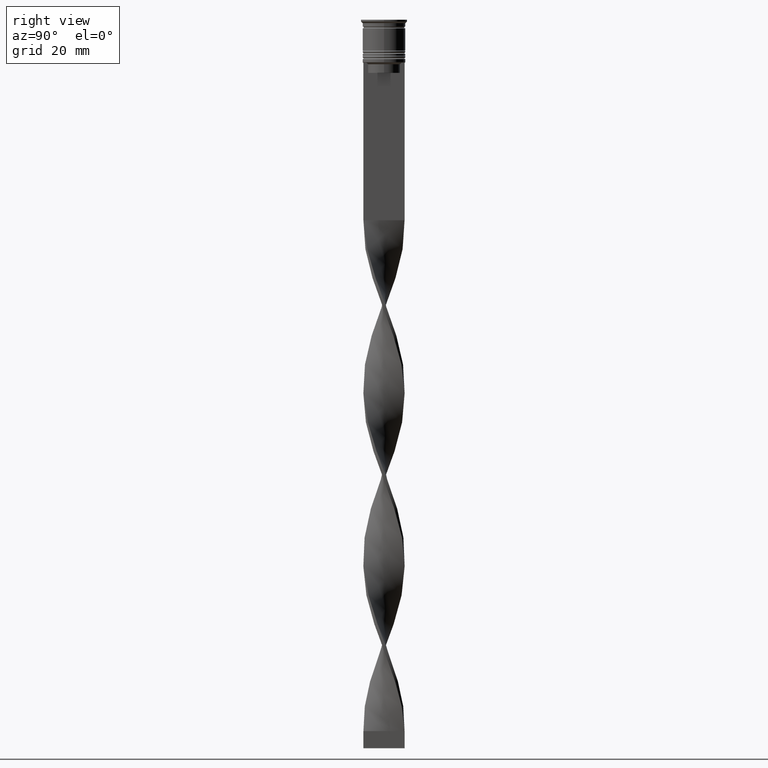
[diagram: clean part render]
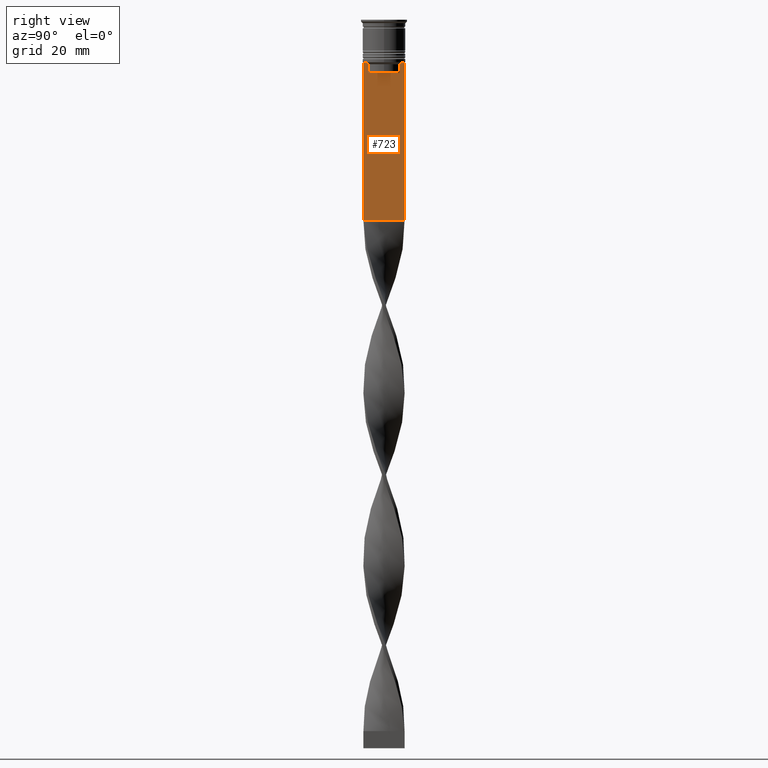
[diagram: same view with one face highlighted and labeled with its STEP entity id]
A machine part, right view. The second image highlights one B-rep face of the part: STEP entity #723.
In plain terms, the highlighted planar face has unit normal (-1, 0, 0).
Its self-contained STEP definition (entity closure, byte-faithful):
#14 = CARTESIAN_POINT ( 'NONE',  ( 0.5000000000000002220, 4.790630915080664742, -12.83338087185995491 ) ) ;
#32 = DIRECTION ( 'NONE',  ( -0.000000000000000000, -0.000000000000000000, 1.000000000000000000 ) ) ;
#78 = VERTEX_POINT ( 'NONE', #1930 ) ;
#184 = CARTESIAN_POINT ( 'NONE',  ( 0.5000000000000002220, 4.623040125285526436, 0.000000000000000000 ) ) ;
#185 = DIRECTION ( 'NONE',  ( 0.000000000000000000, 0.000000000000000000, 1.000000000000000000 ) ) ;
#203 = DIRECTION ( 'NONE',  ( 0.000000000000000000, -1.000000000000000000, 0.000000000000000000 ) ) ;
#280 = CARTESIAN_POINT ( 'NONE',  ( 0.5000000000000002220, 5.125670687822231564, -12.50000000000000000 ) ) ;
#304 = LINE ( 'NONE', #3254, #722 ) ;
#395 = VERTEX_POINT ( 'NONE', #678 ) ;
#484 = ORIENTED_EDGE ( 'NONE', *, *, #1216, .T. ) ;
#517 = CARTESIAN_POINT ( 'NONE',  ( 0.5000000000000002220, -4.623040125285526436, -13.00000000000000178 ) ) ;
#554 = EDGE_CURVE ( 'NONE', #965, #78, #1911, .T. ) ;
#597 = CARTESIAN_POINT ( 'NONE',  ( 0.5000000000000002220, -4.623040125285526436, -13.00000000000000178 ) ) ;
#678 = CARTESIAN_POINT ( 'NONE',  ( 0.5000000000000002220, 5.125670687822231564, -12.50000000000000000 ) ) ;
#722 = VECTOR ( 'NONE', #32, 1000.000000000000000 ) ;
#723 = ADVANCED_FACE ( 'NONE', ( #2562 ), #1402, .F. ) ;
#732 = CARTESIAN_POINT ( 'NONE',  ( 0.5000000000000002220, 4.623040125285526436, -15.50000000000000000 ) ) ;
#761 = CARTESIAN_POINT ( 'NONE',  ( 0.5000000000000002220, 6.000000000000000888, -0.4584054212077061097 ) ) ;
#777 = CARTESIAN_POINT ( 'NONE',  ( 0.5000000000000002220, -6.000000000000000000, -12.50000000000000000 ) ) ;
#804 = VERTEX_POINT ( 'NONE', #886 ) ;
#814 = ORIENTED_EDGE ( 'NONE', *, *, #3630, .T. ) ;
#839 = DIRECTION ( 'NONE',  ( 0.000000000000000000, 1.000000000000000000, 0.000000000000000000 ) ) ;
#868 = CARTESIAN_POINT ( 'NONE',  ( 0.5000000000000002220, -6.000000000000000000, -12.50000000000000000 ) ) ;
#886 = CARTESIAN_POINT ( 'NONE',  ( 0.5000000000000002220, -5.125670687822231564, -12.50000000000000000 ) ) ;
#965 = VERTEX_POINT ( 'NONE', #3401 ) ;
#1026 = LINE ( 'NONE', #3162, #2432 ) ;
#1032 = VECTOR ( 'NONE', #3611, 1000.000000000000000 ) ;
#1070 = DIRECTION ( 'NONE',  ( 0.000000000000000000, 0.000000000000000000, -1.000000000000000000 ) ) ;
#1174 = ORIENTED_EDGE ( 'NONE', *, *, #2844, .T. ) ;
#1216 = EDGE_CURVE ( 'NONE', #3163, #1746, #304, .T. ) ;
#1238 = CARTESIAN_POINT ( 'NONE',  ( 0.5000000000000002220, -4.790630799407577634, -12.83338098686238915 ) ) ;
#1255 = CARTESIAN_POINT ( 'NONE',  ( 0.5000000000000002220, -5.125670687822231564, -12.50000000000000000 ) ) ;
#1336 = ORIENTED_EDGE ( 'NONE', *, *, #3744, .T. ) ;
#1354 = VERTEX_POINT ( 'NONE', #868 ) ;
#1402 = PLANE ( 'NONE',  #2909 ) ;
#1425 = ORIENTED_EDGE ( 'NONE', *, *, #3059, .T. ) ;
#1463 = CARTESIAN_POINT ( 'NONE',  ( 0.5000000000000002220, 4.623040125285526436, -13.00000000000000178 ) ) ;
#1533 = ORIENTED_EDGE ( 'NONE', *, *, #554, .F. ) ;
#1746 = VERTEX_POINT ( 'NONE', #517 ) ;
#1895 = CARTESIAN_POINT ( 'NONE',  ( 0.5000000000000002220, -5.999999999999999112, -58.50000000000000000 ) ) ;
#1911 = LINE ( 'NONE', #761, #1032 ) ;
#1930 = CARTESIAN_POINT ( 'NONE',  ( 0.5000000000000002220, 6.000000000000000888, -58.50000000000000000 ) ) ;
#2000 = LINE ( 'NONE', #2579, #2558 ) ;
#2004 = CARTESIAN_POINT ( 'NONE',  ( 0.5000000000000002220, -6.000000000000000000, -58.50000000000000000 ) ) ;
#2015 = EDGE_LOOP ( 'NONE', ( #2457, #1336, #3446, #2941, #484, #1174, #814, #2614, #1425, #1533 ) ) ;
#2274 = B_SPLINE_CURVE_WITH_KNOTS ( 'NONE', 3,
 ( #597, #1238, #3278, #1255 ),
 .UNSPECIFIED., .F., .F.,
 ( 4, 4 ),
 ( 0.02203698174624554168, 0.02275222543365897770 ),
 .UNSPECIFIED. ) ;
#2283 = DIRECTION ( 'NONE',  ( 0.000000000000000000, -1.000000000000000000, 0.000000000000000000 ) ) ;
#2291 = CARTESIAN_POINT ( 'NONE',  ( 0.5000000000000002220, -6.000000000000000000, -0.4584054212077061097 ) ) ;
#2335 = CARTESIAN_POINT ( 'NONE',  ( 0.5000000000000002220, -4.623040125285526436, -15.50000000000000000 ) ) ;
#2388 = CARTESIAN_POINT ( 'NONE',  ( 0.5000000000000002220, 4.623040125285526436, -13.00000000000000178 ) ) ;
#2432 = VECTOR ( 'NONE', #2283, 1000.000000000000000 ) ;
#2457 = ORIENTED_EDGE ( 'NONE', *, *, #3521, .T. ) ;
#2498 = VECTOR ( 'NONE', #1070, 1000.000000000000000 ) ;
#2558 = VECTOR ( 'NONE', #203, 1000.000000000000000 ) ;
#2562 = FACE_OUTER_BOUND ( 'NONE', #2015, .T. ) ;
#2579 = CARTESIAN_POINT ( 'NONE',  ( 0.5000000000000002220, -6.000000000000000000, -12.50000000000000000 ) ) ;
#2581 = EDGE_CURVE ( 'NONE', #3375, #3163, #1026, .T. ) ;
#2614 = ORIENTED_EDGE ( 'NONE', *, *, #3554, .T. ) ;
#2812 = LINE ( 'NONE', #184, #2498 ) ;
#2844 = EDGE_CURVE ( 'NONE', #1746, #804, #2274, .T. ) ;
#2909 = AXIS2_PLACEMENT_3D ( 'NONE', #3508, #3720, #185 ) ;
#2924 = VERTEX_POINT ( 'NONE', #1463 ) ;
#2941 = ORIENTED_EDGE ( 'NONE', *, *, #2581, .T. ) ;
#2947 = B_SPLINE_CURVE_WITH_KNOTS ( 'NONE', 3,
 ( #280, #3513, #14, #2388 ),
 .UNSPECIFIED., .F., .F.,
 ( 4, 4 ),
 ( 0.008759809102772709091, 0.009468778395565353653 ),
 .UNSPECIFIED. ) ;
#3051 = VECTOR ( 'NONE', #839, 1000.000000000000000 ) ;
#3059 = EDGE_CURVE ( 'NONE', #3428, #78, #3122, .T. ) ;
#3119 = LINE ( 'NONE', #777, #3472 ) ;
#3122 = LINE ( 'NONE', #2004, #3051 ) ;
#3162 = CARTESIAN_POINT ( 'NONE',  ( 0.5000000000000002220, 4.650000000000001243, -15.50000000000000000 ) ) ;
#3163 = VERTEX_POINT ( 'NONE', #2335 ) ;
#3254 = CARTESIAN_POINT ( 'NONE',  ( 0.5000000000000002220, -4.623040125285526436, 0.000000000000000000 ) ) ;
#3278 = CARTESIAN_POINT ( 'NONE',  ( 0.5000000000000002220, -4.958169719475986170, -12.66670967060858111 ) ) ;
#3375 = VERTEX_POINT ( 'NONE', #732 ) ;
#3398 = LINE ( 'NONE', #2291, #3613 ) ;
#3401 = CARTESIAN_POINT ( 'NONE',  ( 0.5000000000000002220, 6.000000000000000888, -12.50000000000000000 ) ) ;
#3422 = DIRECTION ( 'NONE',  ( 0.000000000000000000, -1.000000000000000000, 0.000000000000000000 ) ) ;
#3428 = VERTEX_POINT ( 'NONE', #1895 ) ;
#3446 = ORIENTED_EDGE ( 'NONE', *, *, #3698, .T. ) ;
#3472 = VECTOR ( 'NONE', #3422, 1000.000000000000000 ) ;
#3508 = CARTESIAN_POINT ( 'NONE',  ( 0.5000000000000002220, -6.000000000000000000, -0.4584054212077061097 ) ) ;
#3513 = CARTESIAN_POINT ( 'NONE',  ( 0.5000000000000002220, 4.958169823806760412, -12.66670956677067927 ) ) ;
#3521 = EDGE_CURVE ( 'NONE', #965, #395, #3119, .T. ) ;
#3554 = EDGE_CURVE ( 'NONE', #1354, #3428, #3398, .T. ) ;
#3611 = DIRECTION ( 'NONE',  ( 0.000000000000000000, 0.000000000000000000, -1.000000000000000000 ) ) ;
#3613 = VECTOR ( 'NONE', #3718, 1000.000000000000000 ) ;
#3630 = EDGE_CURVE ( 'NONE', #804, #1354, #2000, .T. ) ;
#3698 = EDGE_CURVE ( 'NONE', #2924, #3375, #2812, .T. ) ;
#3718 = DIRECTION ( 'NONE',  ( 0.000000000000000000, 0.000000000000000000, -1.000000000000000000 ) ) ;
#3720 = DIRECTION ( 'NONE',  ( -1.000000000000000000, 0.000000000000000000, 0.000000000000000000 ) ) ;
#3744 = EDGE_CURVE ( 'NONE', #395, #2924, #2947, .T. ) ;